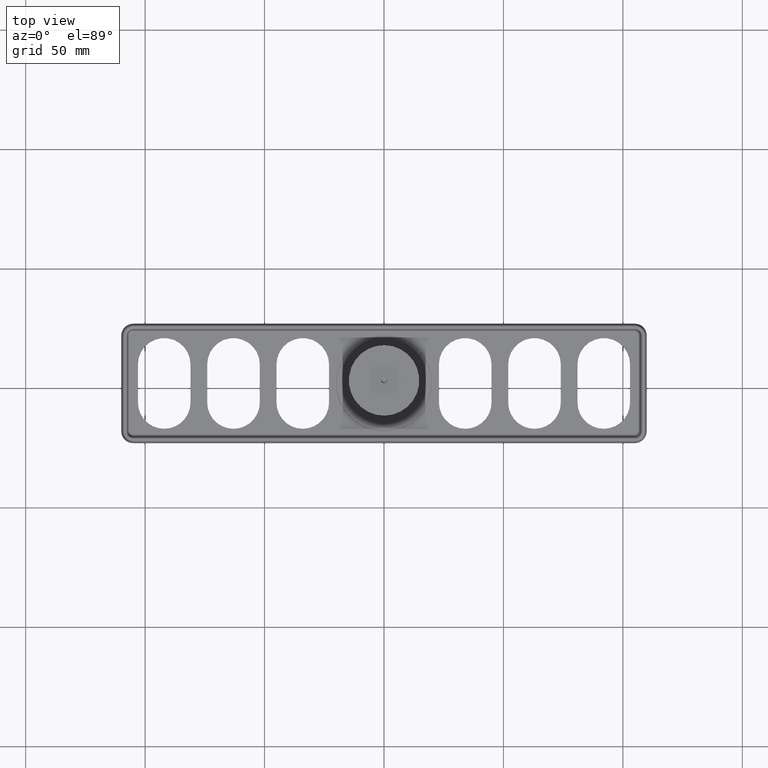
[diagram: clean part render]
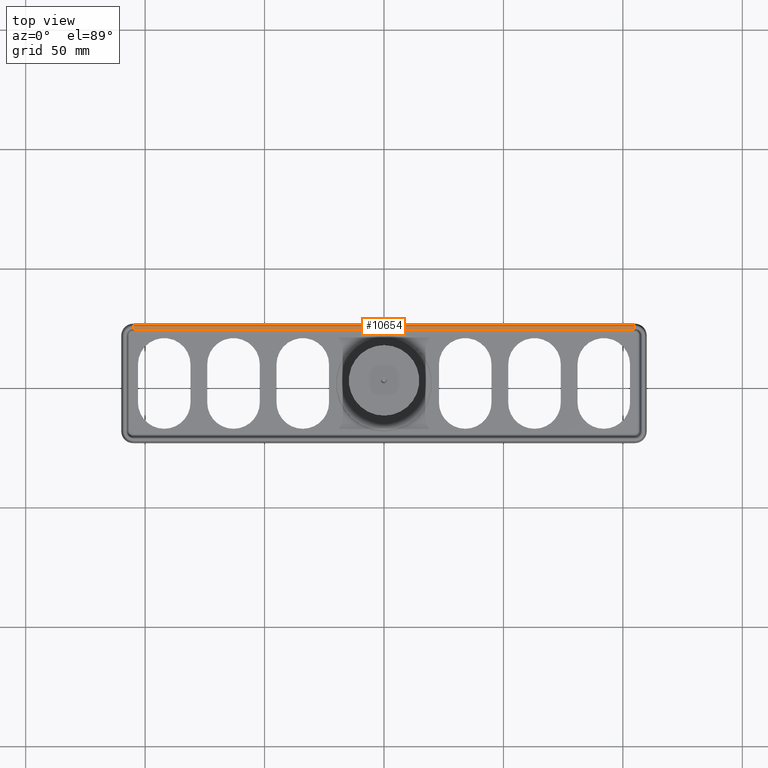
[diagram: same view with one face highlighted and labeled with its STEP entity id]
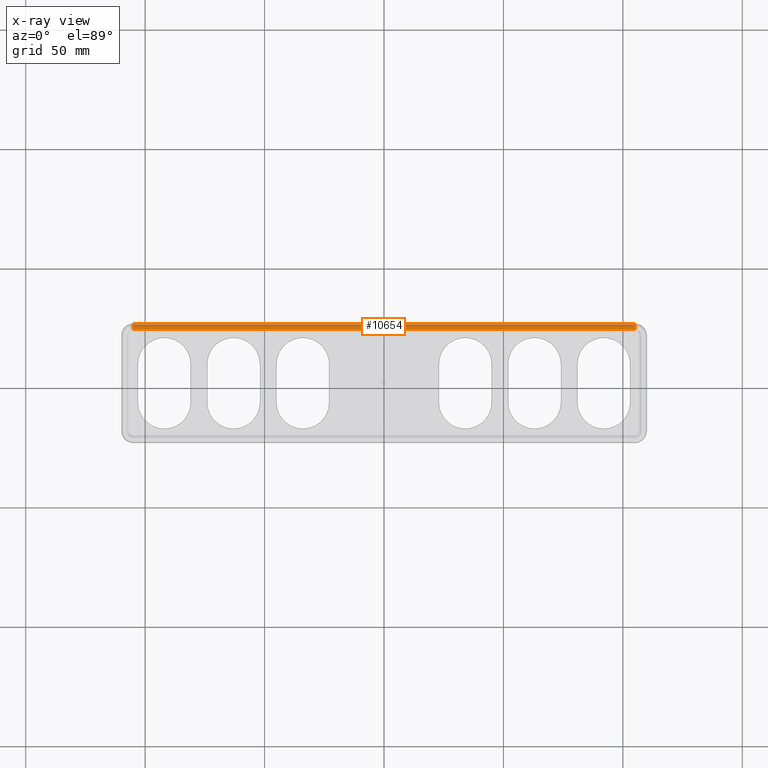
[diagram: x-ray of the same camera — body ghosted, the highlighted face saturated]
A machine part, top view. The second image highlights one B-rep face of the part: STEP entity #10654.
The next image is the same camera in x-ray: the body ghosted, the highlighted face saturated — about 0% of this face is hidden behind the body in this view.
In plain terms, the highlighted cylindrical surface (edge-blend (fillet) strip) has radius 0.9172 mm, axis along (-1, -0, 0).
Its self-contained STEP definition (entity closure, byte-faithful):
#2341 = ORIENTED_EDGE ( 'NONE', *, *, #8627, .T. ) ;
#2669 = DIRECTION ( 'NONE',  ( 1.000000000000000000, 0.0000000000000000000, 7.273661547324615969E-16 ) ) ;
#3590 = LINE ( 'NONE', #41263, #4628 ) ;
#3740 = ORIENTED_EDGE ( 'NONE', *, *, #29664, .F. ) ;
#4628 = VECTOR ( 'NONE', #18492, 1000.000000000000000 ) ;
#5414 = CIRCLE ( 'NONE', #30849, 0.9171839300009948515 ) ;
#5879 = CARTESIAN_POINT ( 'NONE',  ( 105.0000000000000000, 5.210463401687986718, -22.59174204095712568 ) ) ;
#6349 = DIRECTION ( 'NONE',  ( -1.000000000000000000, 0.0000000000000000000, 1.156482317317871478E-16 ) ) ;
#7121 = DIRECTION ( 'NONE',  ( -1.000000000000000000, 0.0000000000000000000, 1.156482317317871478E-16 ) ) ;
#7720 = ORIENTED_EDGE ( 'NONE', *, *, #15370, .F. ) ;
#7970 = VECTOR ( 'NONE', #6349, 1000.000000000000000 ) ;
#8212 = AXIS2_PLACEMENT_3D ( 'NONE', #13707, #7121, #16984 ) ;
#8627 = EDGE_CURVE ( 'NONE', #31153, #30851, #3590, .T. ) ;
#8749 = DIRECTION ( 'NONE',  ( 1.000000000000000000, 0.0000000000000000000, 7.273661547324615969E-16 ) ) ;
#10654 = ADVANCED_FACE ( 'NONE', ( #17373 ), #16344, .T. ) ;
#13415 = CARTESIAN_POINT ( 'NONE',  ( -105.0000000000000000, 5.210463401687986718, -22.59174204095710081 ) ) ;
#13707 = CARTESIAN_POINT ( 'NONE',  ( 105.0000000000000000, 5.082816069999010367, -23.50000000000002132 ) ) ;
#15370 = EDGE_CURVE ( 'NONE', #31153, #30534, #5414, .T. ) ;
#16344 = CYLINDRICAL_SURFACE ( 'NONE', #8212, 0.9171839300009948515 ) ;
#16984 = DIRECTION ( 'NONE',  ( 0.0000000000000000000, 0.0000000000000000000, 1.000000000000000000 ) ) ;
#17373 = FACE_OUTER_BOUND ( 'NONE', #28658, .T. ) ;
#18492 = DIRECTION ( 'NONE',  ( -1.000000000000000000, 0.0000000000000000000, 1.156482317317871478E-16 ) ) ;
#18981 = CIRCLE ( 'NONE', #19184, 0.9171839300009948515 ) ;
#19154 = CARTESIAN_POINT ( 'NONE',  ( -105.0000000000000000, 5.210463401687986718, -24.40825795904287787 ) ) ;
#19184 = AXIS2_PLACEMENT_3D ( 'NONE', #22219, #2669, #25492 ) ;
#22219 = CARTESIAN_POINT ( 'NONE',  ( -105.0000000000000000, 5.082816069999010367, -23.49999999999999645 ) ) ;
#24300 = LINE ( 'NONE', #25896, #7970 ) ;
#25492 = DIRECTION ( 'NONE',  ( 0.0000000000000000000, 0.0000000000000000000, -1.000000000000000000 ) ) ;
#25896 = CARTESIAN_POINT ( 'NONE',  ( 105.0000000000000000, 5.210463401687986718, -22.59174204095712568 ) ) ;
#27485 = ORIENTED_EDGE ( 'NONE', *, *, #40064, .T. ) ;
#28280 = CARTESIAN_POINT ( 'NONE',  ( 105.0000000000000000, 5.082816069999010367, -23.50000000000002132 ) ) ;
#28658 = EDGE_LOOP ( 'NONE', ( #7720, #2341, #27485, #3740 ) ) ;
#29664 = EDGE_CURVE ( 'NONE', #30534, #38921, #24300, .T. ) ;
#30534 = VERTEX_POINT ( 'NONE', #5879 ) ;
#30849 = AXIS2_PLACEMENT_3D ( 'NONE', #28280, #8749, #31576 ) ;
#30851 = VERTEX_POINT ( 'NONE', #19154 ) ;
#31153 = VERTEX_POINT ( 'NONE', #36227 ) ;
#31576 = DIRECTION ( 'NONE',  ( 0.0000000000000000000, 0.0000000000000000000, -1.000000000000000000 ) ) ;
#36227 = CARTESIAN_POINT ( 'NONE',  ( 105.0000000000000000, 5.210463401687986718, -24.40825795904290274 ) ) ;
#38921 = VERTEX_POINT ( 'NONE', #13415 ) ;
#40064 = EDGE_CURVE ( 'NONE', #30851, #38921, #18981, .T. ) ;
#41263 = CARTESIAN_POINT ( 'NONE',  ( 105.0000000000000000, 5.210463401687986718, -24.40825795904290274 ) ) ;